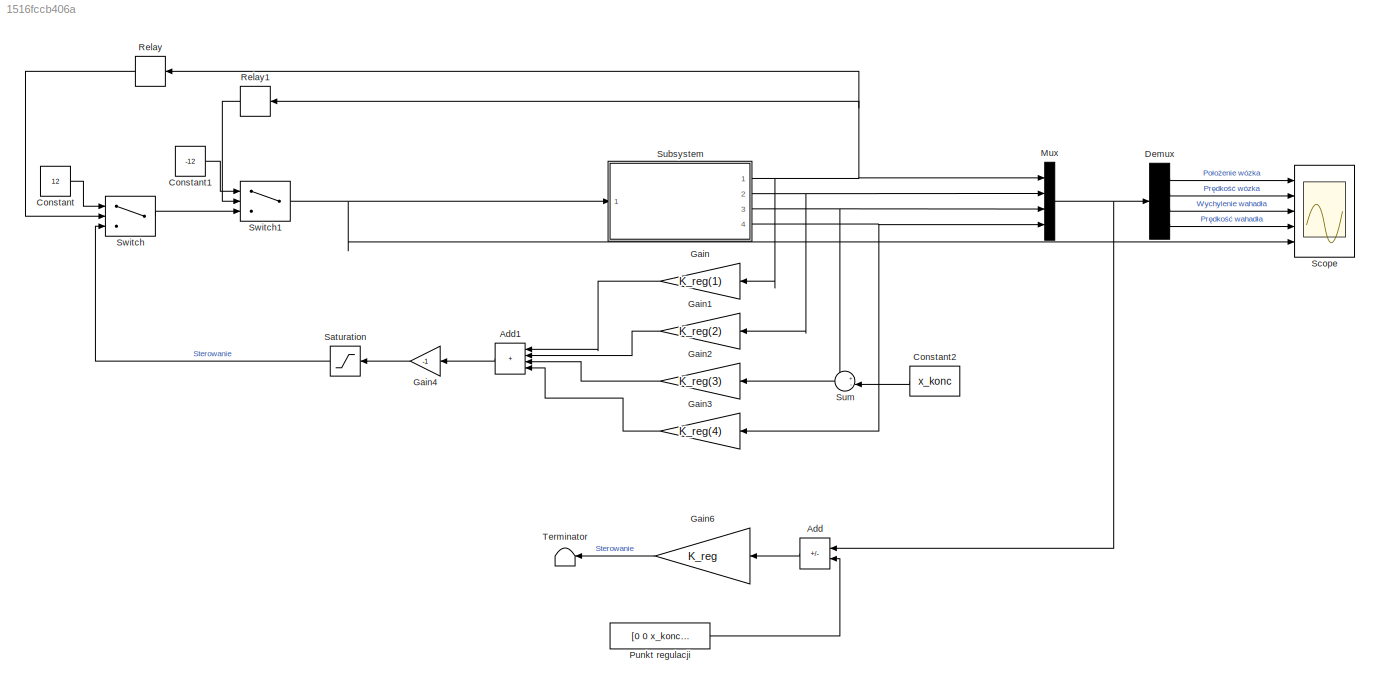
MODEL slx_1516fccb406a
KIND model
CONFIG AbsTol = auto
CONFIG EnableMultiTasking = off
CONFIG FixedStep = auto
CONFIG MaxStep = auto
CONFIG MinStep = auto
CONFIG RelTol = 1e-3
CONFIG SampleTimeConstraint = Unconstrained
CONFIG Solver = VariableStepAuto
CONFIG SolverName = VariableStepAuto
CONFIG StartTime = 0.0
CONFIG StopTime = 15
BLOCK [Sum] Add
  IconShape = rectangular
  Inputs = -+
  Ports = [2, 1]
BLOCK [Sum] Add1
  IconShape = rectangular
  Inputs = ++++
  Ports = [4, 1]
BLOCK [Constant] Constant
  Value = 12
BLOCK [Constant] Constant1
  Value = -12
BLOCK [Constant] Constant2
  Value = x_konc
BLOCK [Demux] Demux
  Ports = [1, 4]
BLOCK [Gain] Gain
  Gain = K_reg(1)
BLOCK [Gain] Gain1
  Gain = K_reg(2)
BLOCK [Gain] Gain2
  Gain = K_reg(3)
BLOCK [Gain] Gain3
  Gain = K_reg(4)
BLOCK [Gain] Gain4
  Gain = -1
BLOCK [Gain] Gain6
  Gain = K_reg
  Multiplication = Matrix(K*u) (u vector)
BLOCK [Mux] Mux
  DisplayOption = bar
  Ports = [4, 1]
BLOCK [Constant] Punkt regulacji
  Value = [0 0 x_konc 0]
  VectorParams1D = off
BLOCK [Relay] Relay
  OffSwitchValue = 0.6
  OnSwitchValue = 0.7
BLOCK [Relay] Relay1
  OffOutputValue = 1
  OffSwitchValue = -0.7
  OnOutputValue = 0
  OnSwitchValue = -0.6
BLOCK [Saturate] Saturation
  LowerLimit = -12
  UpperLimit = 12
BLOCK [Scope] Scope
  Floating = off
  NumInputPorts = 5
  Ports = [5]
  ScopeSpecificationString = Simulink.scopes.TimeScopeBlockCfg('CurrentConfiguration', extmgr.ConfigurationSet(extmgr.Configuration('Core','General UI',true),extmgr.Configuration('Core','Source UI',true),extmgr.Configuration('Sources','WiredSimulink',true),extmgr.Configuration('Visuals','Time Domain',true,'SerializedDisplays',{struct('MinYLimReal','-0.05807','MaxYLimReal','0.5226','YLabelReal','','MinYLimMag','0.00000','MaxYL...<+3451ch>
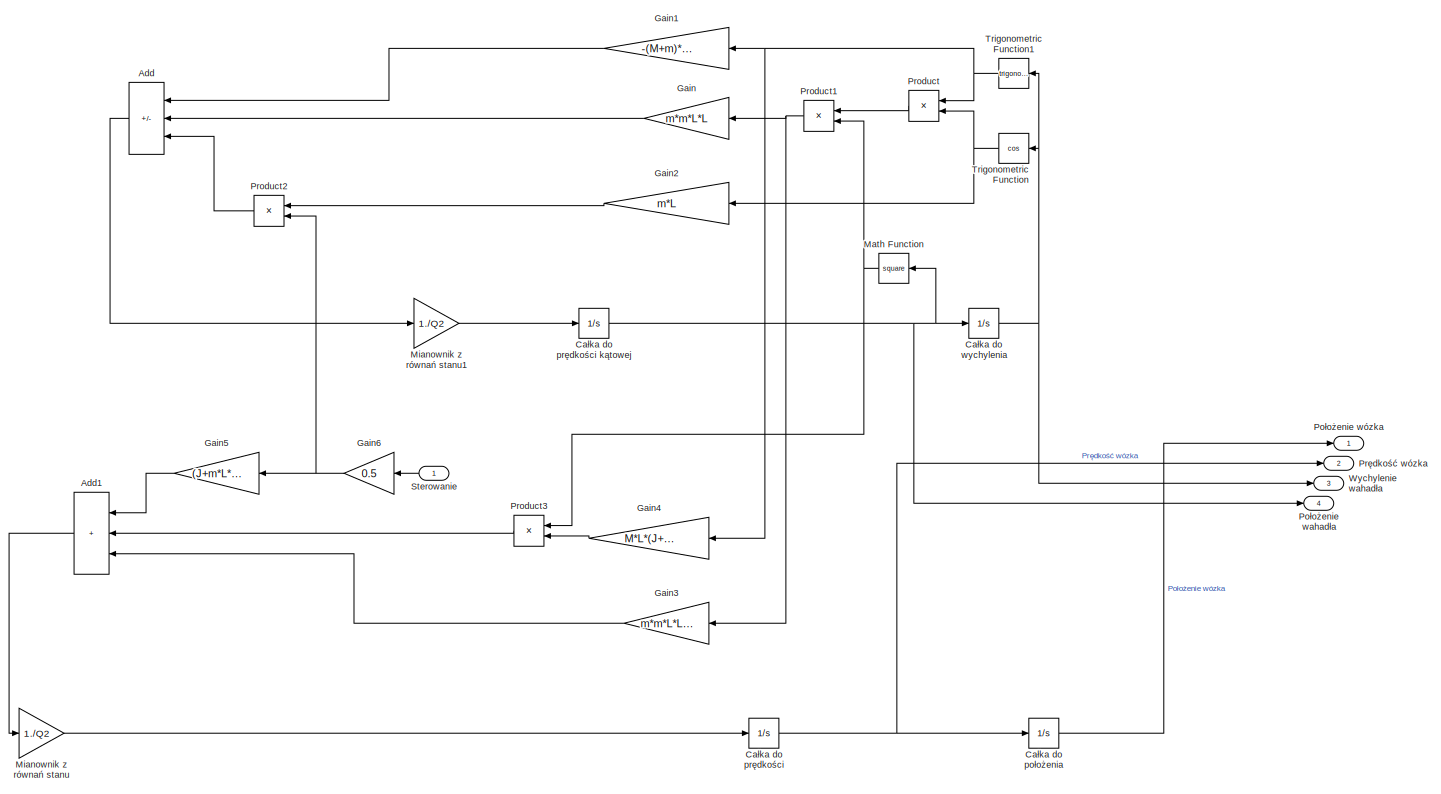
[diagram: Subsystem - part 1/1, most of the canvas]
BLOCK [SubSystem] Subsystem
  Ports = [1, 4]
  RequestExecContextInheritance = off
BLOCK [Sum] Subsystem/Add
  IconShape = rectangular
  Inputs = +--
  Ports = [3, 1]
BLOCK [Sum] Subsystem/Add1
  IconShape = rectangular
  Inputs = +++
  Ports = [3, 1]
BLOCK [Integrator] Subsystem/Całka do położenia
  Ports = [1, 1]
BLOCK [Integrator] Subsystem/Całka do prędkości
  Ports = [1, 1]
BLOCK [Integrator] Subsystem/Całka do prędkości kątowej
  Ports = [1, 1]
BLOCK [Integrator] Subsystem/Całka do wychylenia
  InitialCondition = x_pocz
  Ports = [1, 1]
BLOCK [Gain] Subsystem/Gain
  Gain = m*m*L*L
BLOCK [Gain] Subsystem/Gain1
  Gain = -(M+m)*m*g*L
BLOCK [Gain] Subsystem/Gain2
  Gain = m*L
BLOCK [Gain] Subsystem/Gain3
  Gain = m*m*L*L*g
BLOCK [Gain] Subsystem/Gain4
  Gain = M*L*(J+m*L*L)
BLOCK [Gain] Subsystem/Gain5
  Gain = (J+m*L*L)
BLOCK [Gain] Subsystem/Gain6
  Gain = 0.5
BLOCK [Math] Subsystem/Math Function
  Operator = square
  Ports = [1, 1]
BLOCK [Gain] Subsystem/Mianownik z równań stanu
  Gain = 1./Q2
BLOCK [Gain] Subsystem/Mianownik z równań stanu1
  Gain = 1./Q2
BLOCK [Outport] Subsystem/Położenie wahadła
  Port = 4
BLOCK [Outport] Subsystem/Położenie wózka
BLOCK [Product] Subsystem/Product
  Ports = [2, 1]
BLOCK [Product] Subsystem/Product1
  Ports = [2, 1]
BLOCK [Product] Subsystem/Product2
  Ports = [2, 1]
BLOCK [Product] Subsystem/Product3
  Ports = [2, 1]
BLOCK [Outport] Subsystem/Prędkość wózka
  Port = 2
BLOCK [Inport] Subsystem/Sterowanie
BLOCK [Trigonometry] Subsystem/Trigonometric Function
  Operator = cos
  Ports = [1, 1]
BLOCK [Trigonometry] Subsystem/Trigonometric Function1
  Ports = [1, 1]
BLOCK [Outport] Subsystem/Wychylenie wahadła
  Port = 3
BLOCK [Sum] Sum
  Inputs = +-|
  Ports = [2, 1]
BLOCK [Switch] Switch
  InputSameDT = off
  SaturateOnIntegerOverflow = off
  Threshold = 1
BLOCK [Switch] Switch1
  InputSameDT = off
  SaturateOnIntegerOverflow = off
  Threshold = 1
BLOCK [Terminator] Terminator
LINE Add1:1 -> Gain4:1
LINE Add:1 -> Gain6:1
LINE Constant1:1 -> Switch1:1
LINE Constant2:1 -> Sum:2
LINE Constant:1 -> Switch:1
LINE Demux:1 -> Scope:1
LINE Demux:2 -> Scope:2
LINE Demux:3 -> Scope:3
LINE Demux:4 -> Scope:4
LINE Gain1:1 -> Add1:2
LINE Gain2:1 -> Add1:3
LINE Gain3:1 -> Add1:4
LINE Gain4:1 -> Saturation:1
LINE Gain6:1 -> Terminator:1
LINE Gain:1 -> Add1:1
NET Mux:1 -> Add:1, Demux:1
LINE Punkt regulacji:1 -> Add:2
LINE Relay1:1 -> Switch1:2
LINE Relay:1 -> Switch:2
LINE Saturation:1 -> Switch:3
LINE Subsystem/Add1:1 -> Subsystem/Mianownik z równań stanu:1
LINE Subsystem/Add:1 -> Subsystem/Mianownik z równań stanu1:1
LINE Subsystem/Całka do położenia:1 -> Subsystem/Położenie wózka:1
NET Subsystem/Całka do prędkości kątowej:1 -> Subsystem/Całka do wychylenia:1, Subsystem/Math Function:1, Subsystem/Położenie wahadła:1
NET Subsystem/Całka do prędkości:1 -> Subsystem/Całka do położenia:1, Subsystem/Prędkość wózka:1
NET Subsystem/Całka do wychylenia:1 -> Subsystem/Trigonometric Function1:1, Subsystem/Trigonometric Function:1, Subsystem/Wychylenie wahadła:1
LINE Subsystem/Gain1:1 -> Subsystem/Add:1
LINE Subsystem/Gain2:1 -> Subsystem/Product2:1
LINE Subsystem/Gain3:1 -> Subsystem/Add1:3
LINE Subsystem/Gain4:1 -> Subsystem/Product3:2
LINE Subsystem/Gain5:1 -> Subsystem/Add1:1
NET Subsystem/Gain6:1 -> Subsystem/Gain5:1, Subsystem/Product2:2
LINE Subsystem/Gain:1 -> Subsystem/Add:2
NET Subsystem/Math Function:1 -> Subsystem/Product1:2, Subsystem/Product3:1
LINE Subsystem/Mianownik z równań stanu1:1 -> Subsystem/Całka do prędkości kątowej:1
LINE Subsystem/Mianownik z równań stanu:1 -> Subsystem/Całka do prędkości:1
NET Subsystem/Product1:1 -> Subsystem/Gain3:1, Subsystem/Gain:1
LINE Subsystem/Product2:1 -> Subsystem/Add:3
LINE Subsystem/Product3:1 -> Subsystem/Add1:2
LINE Subsystem/Product:1 -> Subsystem/Product1:1
LINE Subsystem/Sterowanie:1 -> Subsystem/Gain6:1
NET Subsystem/Trigonometric Function1:1 -> Subsystem/Gain1:1, Subsystem/Gain4:1, Subsystem/Product:1
NET Subsystem/Trigonometric Function:1 -> Subsystem/Gain2:1, Subsystem/Product:2
NET Subsystem:1 -> Gain:1, Mux:1, Relay1:1, Relay:1
NET Subsystem:2 -> Gain1:1, Mux:2
NET Subsystem:3 -> Mux:3, Sum:1
NET Subsystem:4 -> Gain3:1, Mux:4
LINE Sum:1 -> Gain2:1
NET Switch1:1 -> Scope:5, Subsystem:1
LINE Switch:1 -> Switch1:3
note: NET lines group one-source signal fan-out (src -> all destinations, sorted); 1:1 wires keep LINE
